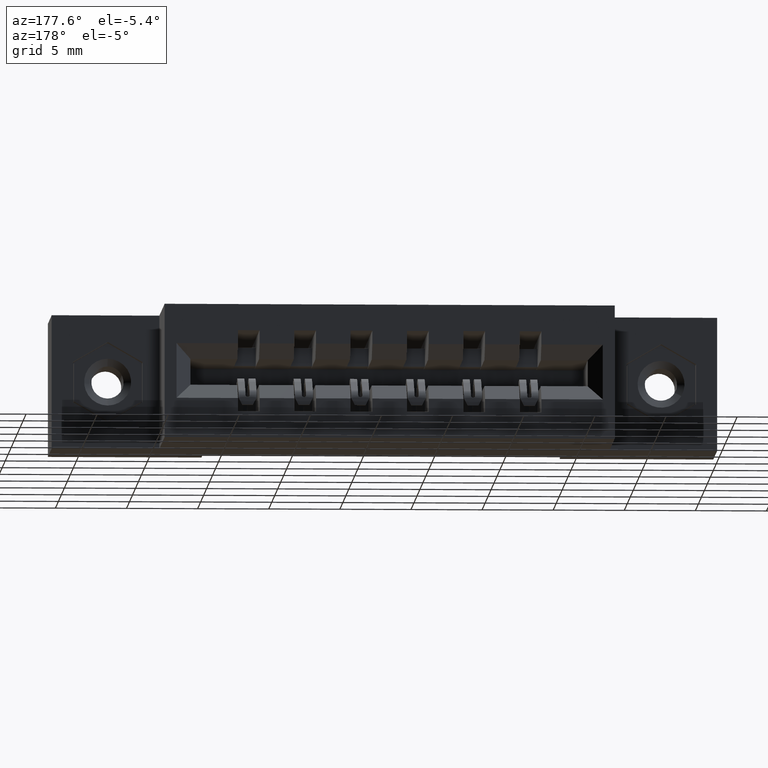
[diagram: clean part render]
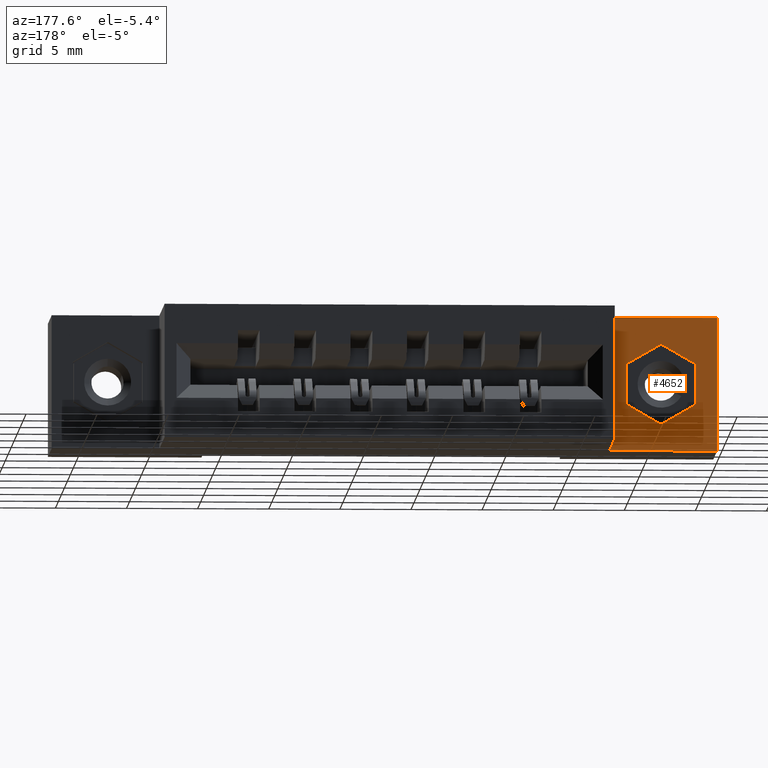
[diagram: same view with one face highlighted and labeled with its STEP entity id]
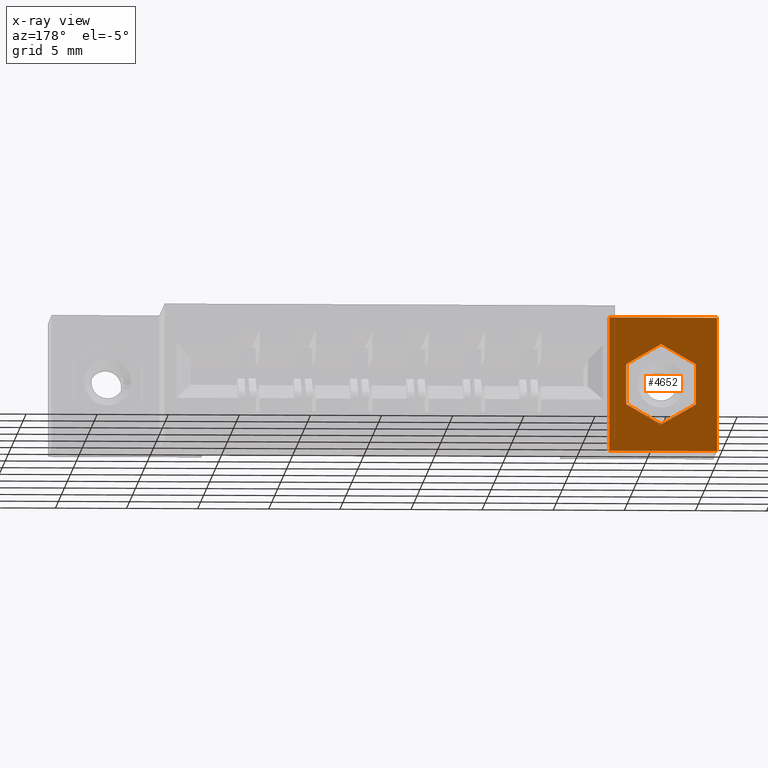
[diagram: x-ray of the same camera — body ghosted, the highlighted face saturated]
A machine part, auxiliary view. The second image highlights one B-rep face of the part: STEP entity #4652.
The next image is the same camera in x-ray: the body ghosted, the highlighted face saturated — about 7% of this face is hidden behind the body in this view.
In plain terms, the highlighted planar face has unit normal (0, -1, 0).
Its self-contained STEP definition (entity closure, byte-faithful):
#45 = EDGE_CURVE ( 'NONE', #3239, #4387, #5660, .T. ) ;
#47 = CARTESIAN_POINT ( 'NONE',  ( 0.2980000000000001000, 0.2500000000000000000, -0.3700000000000001600 ) ) ;
#91 = FACE_BOUND ( 'NONE', #5871, .T. ) ;
#219 = ORIENTED_EDGE ( 'NONE', *, *, #8237, .F. ) ;
#252 = DIRECTION ( 'NONE',  ( 0.0000000000000000000, -0.0000000000000000000, -1.000000000000000000 ) ) ;
#741 = DIRECTION ( 'NONE',  ( 0.0000000000000000000, 0.0000000000000000000, 1.000000000000000000 ) ) ;
#1244 = CARTESIAN_POINT ( 'NONE',  ( 0.05849999999999980200, 0.2500000000000000000, -0.1292856990232010800 ) ) ;
#1497 = CARTESIAN_POINT ( 'NONE',  ( 0.1549999999999998000, 0.2500000000000000000, -0.07357139804640221200 ) ) ;
#1498 = CARTESIAN_POINT ( 'NONE',  ( 0.05849999999999980200, 0.2500000000000000000, -0.2407143009767989100 ) ) ;
#1786 = VECTOR ( 'NONE', #9935, 39.37007874015748100 ) ;
#1971 = CARTESIAN_POINT ( 'NONE',  ( 0.2514999999999997800, 0.2500000000000000000, -0.1292856990232011400 ) ) ;
#2097 = CARTESIAN_POINT ( 'NONE',  ( 0.05849999999999980200, 0.2500000000000000000, -0.1292856990232010800 ) ) ;
#2432 = FACE_OUTER_BOUND ( 'NONE', #5441, .T. ) ;
#2557 = VERTEX_POINT ( 'NONE', #3970 ) ;
#2767 = LINE ( 'NONE', #5560, #4408 ) ;
#2891 = VECTOR ( 'NONE', #9645, 39.37007874015748100 ) ;
#2939 = ORIENTED_EDGE ( 'NONE', *, *, #9279, .F. ) ;
#3018 = LINE ( 'NONE', #1497, #2891 ) ;
#3038 = ORIENTED_EDGE ( 'NONE', *, *, #5159, .T. ) ;
#3047 = LINE ( 'NONE', #1498, #5776 ) ;
#3239 = VERTEX_POINT ( 'NONE', #10195 ) ;
#3244 = CARTESIAN_POINT ( 'NONE',  ( 0.2980000000000001000, 0.2500000000000000000, 0.0000000000000000000 ) ) ;
#3410 = PLANE ( 'NONE',  #3551 ) ;
#3419 = VERTEX_POINT ( 'NONE', #47 ) ;
#3551 = AXIS2_PLACEMENT_3D ( 'NONE', #4234, #6605, #252 ) ;
#3556 = VERTEX_POINT ( 'NONE', #4973 ) ;
#3653 = DIRECTION ( 'NONE',  ( 0.8660254037844386000, 0.0000000000000000000, 0.4999999999999998300 ) ) ;
#3679 = VECTOR ( 'NONE', #3786, 39.37007874015748100 ) ;
#3786 = DIRECTION ( 'NONE',  ( -0.8660254037844388200, 0.0000000000000000000, 0.4999999999999998300 ) ) ;
#3951 = CARTESIAN_POINT ( 'NONE',  ( 0.0000000000000000000, 0.2500000000000000000, 0.0000000000000000000 ) ) ;
#3970 = CARTESIAN_POINT ( 'NONE',  ( 0.1549999999999998900, 0.2500000000000000000, -0.2964286019535978300 ) ) ;
#4062 = DIRECTION ( 'NONE',  ( 0.0000000000000000000, 0.0000000000000000000, -1.000000000000000000 ) ) ;
#4234 = CARTESIAN_POINT ( 'NONE',  ( 0.0000000000000000000, 0.2500000000000000000, -0.3700000000000001600 ) ) ;
#4387 = VERTEX_POINT ( 'NONE', #5455 ) ;
#4393 = VECTOR ( 'NONE', #5822, 39.37007874015748900 ) ;
#4408 = VECTOR ( 'NONE', #4062, 39.37007874015748100 ) ;
#4467 = CARTESIAN_POINT ( 'NONE',  ( 0.0000000000000000000, 0.2500000000000000000, -0.3700000000000001600 ) ) ;
#4652 = ADVANCED_FACE ( 'NONE', ( #91, #2432 ), #3410, .F. ) ;
#4954 = VERTEX_POINT ( 'NONE', #3244 ) ;
#4973 = CARTESIAN_POINT ( 'NONE',  ( 0.1549999999999998000, 0.2500000000000000000, -0.07357139804640214200 ) ) ;
#5123 = ORIENTED_EDGE ( 'NONE', *, *, #9265, .T. ) ;
#5159 = EDGE_CURVE ( 'NONE', #5851, #4954, #10053, .T. ) ;
#5374 = CARTESIAN_POINT ( 'NONE',  ( 0.05849999999999980200, 0.2500000000000000000, -0.2407143009767989100 ) ) ;
#5429 = VERTEX_POINT ( 'NONE', #2097 ) ;
#5441 = EDGE_LOOP ( 'NONE', ( #8688, #3038, #5123, #6926 ) ) ;
#5455 = CARTESIAN_POINT ( 'NONE',  ( 0.2514999999999997800, 0.2500000000000000000, -0.2407143009767990200 ) ) ;
#5541 = EDGE_CURVE ( 'NONE', #9598, #5429, #3047, .T. ) ;
#5559 = VERTEX_POINT ( 'NONE', #10267 ) ;
#5560 = CARTESIAN_POINT ( 'NONE',  ( 0.2980000000000001000, 0.2500000000000000000, 0.0000000000000000000 ) ) ;
#5660 = LINE ( 'NONE', #1971, #8799 ) ;
#5776 = VECTOR ( 'NONE', #741, 39.37007874015748100 ) ;
#5786 = VECTOR ( 'NONE', #6747, 39.37007874015748100 ) ;
#5798 = EDGE_CURVE ( 'NONE', #5429, #3556, #7410, .T. ) ;
#5822 = DIRECTION ( 'NONE',  ( -0.8660254037844386000, 0.0000000000000000000, -0.4999999999999998900 ) ) ;
#5851 = VERTEX_POINT ( 'NONE', #6980 ) ;
#5871 = EDGE_LOOP ( 'NONE', ( #2939, #10284, #8985, #6325, #219, #6730 ) ) ;
#5894 = EDGE_CURVE ( 'NONE', #2557, #9598, #8665, .T. ) ;
#6325 = ORIENTED_EDGE ( 'NONE', *, *, #5894, .F. ) ;
#6605 = DIRECTION ( 'NONE',  ( 0.0000000000000000000, -1.000000000000000000, 0.0000000000000000000 ) ) ;
#6634 = CARTESIAN_POINT ( 'NONE',  ( 0.2514999999999997800, 0.2500000000000000000, -0.2407143009767990200 ) ) ;
#6730 = ORIENTED_EDGE ( 'NONE', *, *, #45, .F. ) ;
#6747 = DIRECTION ( 'NONE',  ( 1.000000000000000000, 0.0000000000000000000, 0.0000000000000000000 ) ) ;
#6926 = ORIENTED_EDGE ( 'NONE', *, *, #7090, .T. ) ;
#6980 = CARTESIAN_POINT ( 'NONE',  ( 0.0000000000000000000, 0.2500000000000000000, 0.0000000000000000000 ) ) ;
#7090 = EDGE_CURVE ( 'NONE', #3419, #5559, #8400, .T. ) ;
#7284 = VECTOR ( 'NONE', #3653, 39.37007874015748900 ) ;
#7410 = LINE ( 'NONE', #1244, #7284 ) ;
#8131 = LINE ( 'NONE', #6634, #4393 ) ;
#8237 = EDGE_CURVE ( 'NONE', #4387, #2557, #8131, .T. ) ;
#8356 = DIRECTION ( 'NONE',  ( 0.0000000000000000000, 0.0000000000000000000, -1.000000000000000000 ) ) ;
#8400 = LINE ( 'NONE', #4467, #1786 ) ;
#8555 = LINE ( 'NONE', #3951, #10193 ) ;
#8665 = LINE ( 'NONE', #8692, #3679 ) ;
#8688 = ORIENTED_EDGE ( 'NONE', *, *, #8787, .T. ) ;
#8692 = CARTESIAN_POINT ( 'NONE',  ( 0.1549999999999998900, 0.2500000000000000000, -0.2964286019535978300 ) ) ;
#8787 = EDGE_CURVE ( 'NONE', #5559, #5851, #8555, .T. ) ;
#8799 = VECTOR ( 'NONE', #8356, 39.37007874015748100 ) ;
#8800 = DIRECTION ( 'NONE',  ( -0.0000000000000000000, -0.0000000000000000000, 1.000000000000000000 ) ) ;
#8985 = ORIENTED_EDGE ( 'NONE', *, *, #5541, .F. ) ;
#9265 = EDGE_CURVE ( 'NONE', #4954, #3419, #2767, .T. ) ;
#9279 = EDGE_CURVE ( 'NONE', #3556, #3239, #3018, .T. ) ;
#9598 = VERTEX_POINT ( 'NONE', #5374 ) ;
#9645 = DIRECTION ( 'NONE',  ( 0.8660254037844383700, 0.0000000000000000000, -0.5000000000000004400 ) ) ;
#9935 = DIRECTION ( 'NONE',  ( -1.000000000000000000, -0.0000000000000000000, -0.0000000000000000000 ) ) ;
#9942 = CARTESIAN_POINT ( 'NONE',  ( 0.0000000000000000000, 0.2500000000000000000, 0.0000000000000000000 ) ) ;
#10053 = LINE ( 'NONE', #9942, #5786 ) ;
#10193 = VECTOR ( 'NONE', #8800, 39.37007874015748100 ) ;
#10195 = CARTESIAN_POINT ( 'NONE',  ( 0.2514999999999997800, 0.2500000000000000000, -0.1292856990232011400 ) ) ;
#10267 = CARTESIAN_POINT ( 'NONE',  ( 0.0000000000000000000, 0.2500000000000000000, -0.3700000000000001600 ) ) ;
#10284 = ORIENTED_EDGE ( 'NONE', *, *, #5798, .F. ) ;